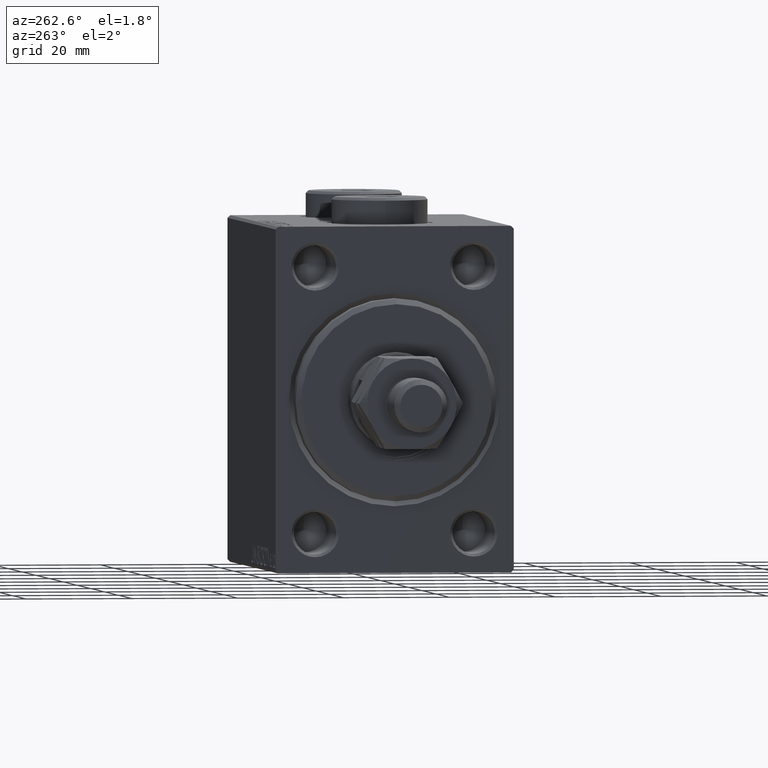
[diagram: clean part render]
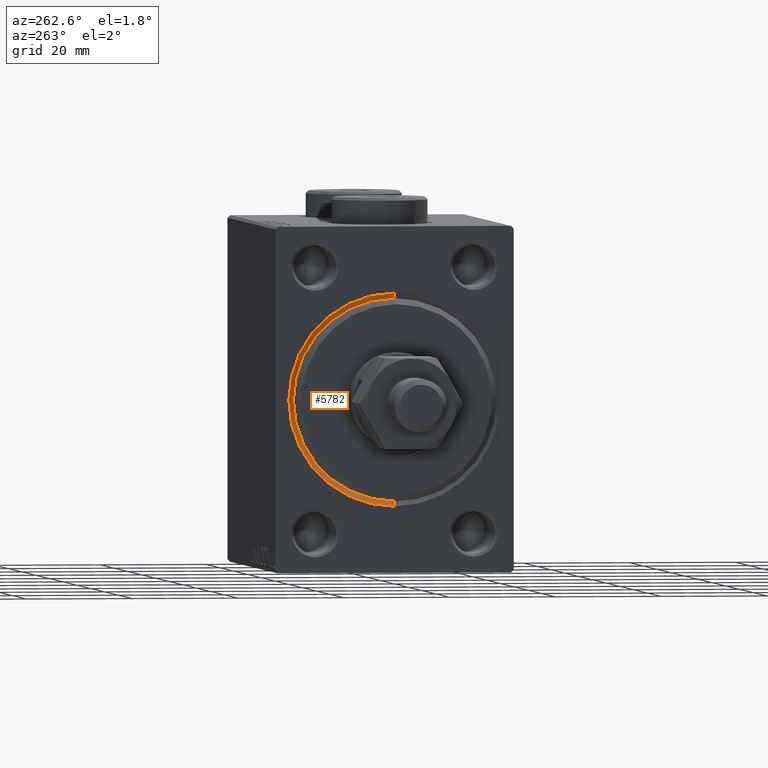
[diagram: same view with one face highlighted and labeled with its STEP entity id]
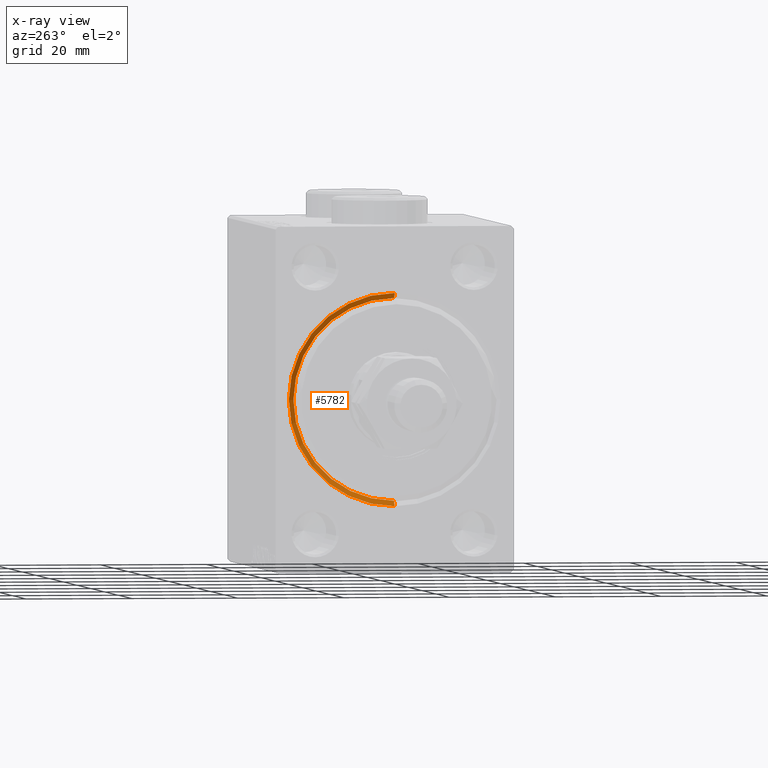
[diagram: x-ray of the same camera — body ghosted, the highlighted face saturated]
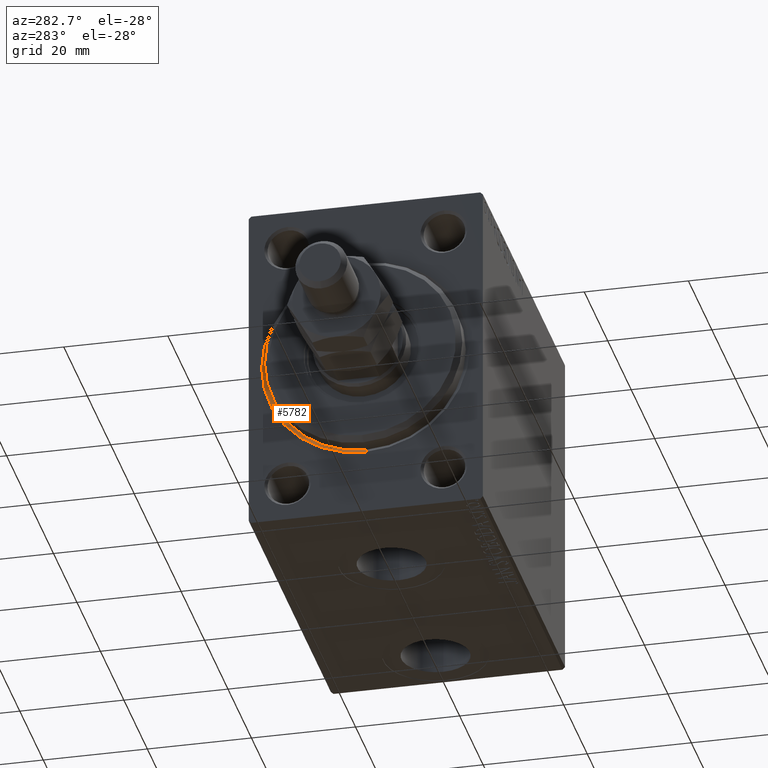
[diagram: same view with one face highlighted and labeled with its STEP entity id]
A machine part, auxiliary view. The second image highlights one B-rep face of the part: STEP entity #5782.
The next image is the same camera in x-ray: the body ghosted, the highlighted face saturated — about 0% of this face is hidden behind the body in this view.
A second angle (auxiliary view) of the same face is appended — the face is thin or edge-on in the first view.
In plain terms, the highlighted conical surface has half-angle 45 deg.
Its self-contained STEP definition (entity closure, byte-faithful):
#1601 = AXIS2_PLACEMENT_3D ( 'NONE', #14099, #10506, #25788 ) ;
#3121 = EDGE_CURVE ( 'NONE', #12413, #30442, #46550, .T. ) ;
#3312 = CARTESIAN_POINT ( 'NONE',  ( 1.000000000000000888, 2.326828918379970970E-15, -19.00000000000000000 ) ) ;
#5002 = ORIENTED_EDGE ( 'NONE', *, *, #3121, .F. ) ;
#5782 = ADVANCED_FACE ( 'NONE', ( #21258 ), #38134, .F. ) ;
#5923 = LINE ( 'NONE', #42407, #32308 ) ;
#6336 = CARTESIAN_POINT ( 'NONE',  ( 1.000000000000000888, 2.326828918379970970E-15, -19.00000000000000000 ) ) ;
#8014 = DIRECTION ( 'NONE',  ( 0.000000000000000000, 0.000000000000000000, -1.000000000000000000 ) ) ;
#10506 = DIRECTION ( 'NONE',  ( -1.000000000000000000, 0.000000000000000000, 0.000000000000000000 ) ) ;
#10589 = ORIENTED_EDGE ( 'NONE', *, *, #39533, .F. ) ;
#11321 = CARTESIAN_POINT ( 'NONE',  ( 0.000000000000000000, 0.000000000000000000, 0.000000000000000000 ) ) ;
#12413 = VERTEX_POINT ( 'NONE', #36515 ) ;
#13262 = AXIS2_PLACEMENT_3D ( 'NONE', #11321, #26389, #8014 ) ;
#14099 = CARTESIAN_POINT ( 'NONE',  ( 1.000000000000000888, 0.000000000000000000, 0.000000000000000000 ) ) ;
#14247 = DIRECTION ( 'NONE',  ( -0.7071067811865463515, 0.000000000000000000, 0.7071067811865487940 ) ) ;
#14714 = ORIENTED_EDGE ( 'NONE', *, *, #36278, .F. ) ;
#17604 = VERTEX_POINT ( 'NONE', #30322 ) ;
#17845 = DIRECTION ( 'NONE',  ( -0.7071067811865463515, 8.659560562354948882E-17, -0.7071067811865487940 ) ) ;
#21258 = FACE_OUTER_BOUND ( 'NONE', #33000, .T. ) ;
#21661 = CIRCLE ( 'NONE', #13262, 20.00000000000000355 ) ;
#23147 = VECTOR ( 'NONE', #17845, 1000.000000000000000 ) ;
#25788 = DIRECTION ( 'NONE',  ( 0.000000000000000000, 0.000000000000000000, 1.000000000000000000 ) ) ;
#26389 = DIRECTION ( 'NONE',  ( 1.000000000000000000, 0.000000000000000000, 0.000000000000000000 ) ) ;
#30322 = CARTESIAN_POINT ( 'NONE',  ( 0.000000000000000000, 0.000000000000000000, 20.00000000000000355 ) ) ;
#30442 = VERTEX_POINT ( 'NONE', #6336 ) ;
#31195 = CARTESIAN_POINT ( 'NONE',  ( 1.000000000000000888, 0.000000000000000000, 0.000000000000000000 ) ) ;
#32308 = VECTOR ( 'NONE', #14247, 1000.000000000000000 ) ;
#32905 = VERTEX_POINT ( 'NONE', #41173 ) ;
#33000 = EDGE_LOOP ( 'NONE', ( #10589, #5002, #37025, #14714 ) ) ;
#35962 = LINE ( 'NONE', #3312, #23147 ) ;
#36278 = EDGE_CURVE ( 'NONE', #32905, #17604, #21661, .T. ) ;
#36515 = CARTESIAN_POINT ( 'NONE',  ( 1.000000000000000888, 0.000000000000000000, 19.00000000000000000 ) ) ;
#37025 = ORIENTED_EDGE ( 'NONE', *, *, #40333, .T. ) ;
#37403 = AXIS2_PLACEMENT_3D ( 'NONE', #31195, #38350, #38580 ) ;
#38134 = CONICAL_SURFACE ( 'NONE', #1601, 19.00000000000000000, 0.7853981633974500554 ) ;
#38350 = DIRECTION ( 'NONE',  ( -1.000000000000000000, 0.000000000000000000, 0.000000000000000000 ) ) ;
#38580 = DIRECTION ( 'NONE',  ( 0.000000000000000000, 0.000000000000000000, -1.000000000000000000 ) ) ;
#39533 = EDGE_CURVE ( 'NONE', #30442, #32905, #35962, .T. ) ;
#40333 = EDGE_CURVE ( 'NONE', #12413, #17604, #5923, .T. ) ;
#41173 = CARTESIAN_POINT ( 'NONE',  ( 0.000000000000000000, 2.449293598294706907E-15, -20.00000000000000355 ) ) ;
#42407 = CARTESIAN_POINT ( 'NONE',  ( 1.000000000000000888, 0.000000000000000000, 19.00000000000000000 ) ) ;
#46550 = CIRCLE ( 'NONE', #37403, 19.00000000000000000 ) ;